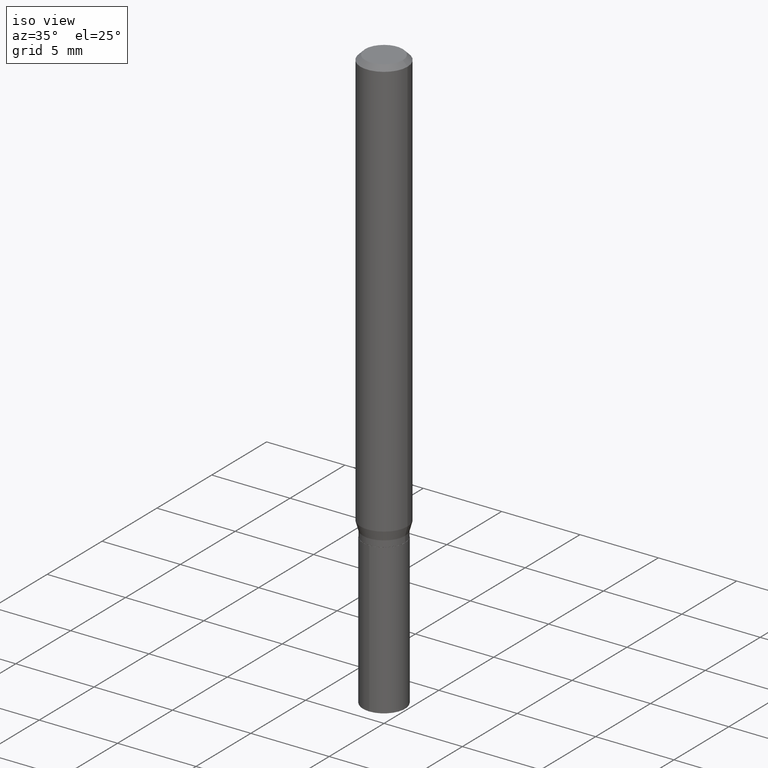
[diagram: clean part render]
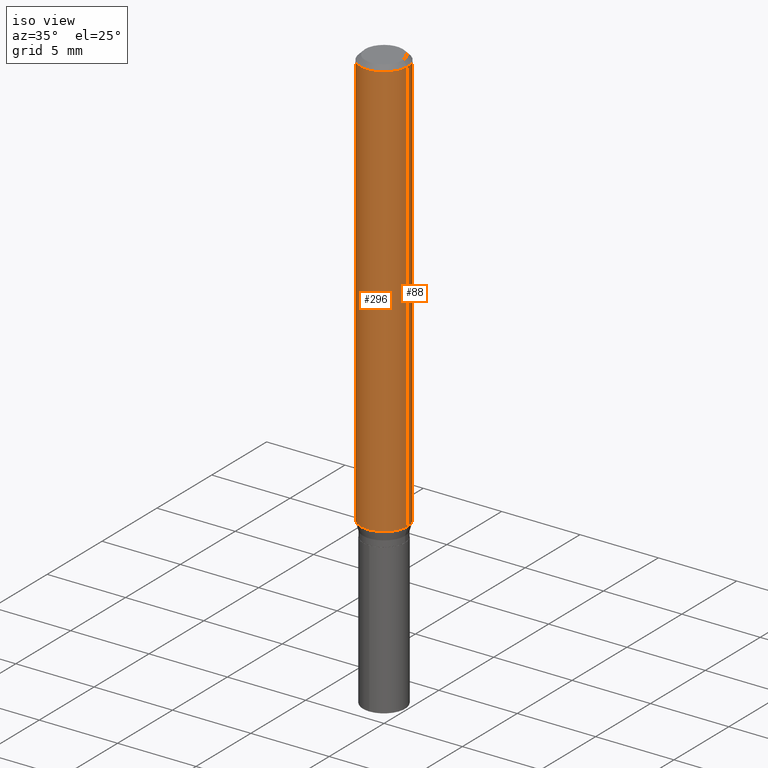
[diagram: same view with one multi-face feature highlighted, each face labeled with its STEP entity id]
A machine part, iso view. The highlighted faces form ONE feature: a constant-radius fillet chain: 2 tangent blend faces with common blend radius 1.4999 mm. The faces share edges in the B-rep.
Their STEP definitions:
[1] entity #296 (Cylinder):
#3 = VECTOR ( 'NONE', #352, 39.37007874015748143 ) ;
#17 = CARTESIAN_POINT ( 'NONE',  ( -0.05905000000000006771, 4.195754854663396409E-16, -2.904631170795525045E-30 ) ) ;
#26 = EDGE_LOOP ( 'NONE', ( #450, #460, #344, #359 ) ) ;
#34 = DIRECTION ( 'NONE',  ( -2.445468806185136597E-29, 3.491481338843145583E-15, 1.000000000000000000 ) ) ;
#50 = EDGE_CURVE ( 'NONE', #488, #483, #157, .T. ) ;
#72 = CARTESIAN_POINT ( 'NONE',  ( 0.05904999999999999832, -4.535783407291118600E-16, -0.01181000000000007218 ) ) ;
#76 = DIRECTION ( 'NONE',  ( -2.445468806185136877E-29, 3.491481338843145188E-15, 1.000000000000000000 ) ) ;
#100 = CARTESIAN_POINT ( 'NONE',  ( -0.05905000000000013016, -3.266850933533403500E-15, -1.055834490073829457 ) ) ;
#113 = CARTESIAN_POINT ( 'NONE',  ( 0.05905000000000013016, -4.098770365117118307E-15, -1.055834490073829457 ) ) ;
#133 = DIRECTION ( 'NONE',  ( -2.445468806185136597E-29, 3.491481338843145583E-15, 1.000000000000000000 ) ) ;
#138 = DIRECTION ( 'NONE',  ( 1.000000000000000000, -6.982962677686266711E-15, 4.876176775795936353E-29 ) ) ;
#156 = CARTESIAN_POINT ( 'NONE',  ( 2.888098660104664204E-31, -4.123439461173780263E-17, -0.01181000000000007218 ) ) ;
#157 = LINE ( 'NONE', #309, #198 ) ;
#159 = LINE ( 'NONE', #17, #3 ) ;
#171 = AXIS2_PLACEMENT_3D ( 'NONE', #449, #133, #138 ) ;
#180 = DIRECTION ( 'NONE',  ( 1.000000000000000000, -6.982962677686265133E-15, 0.000000000000000000 ) ) ;
#187 = EDGE_CURVE ( 'NONE', #328, #419, #159, .T. ) ;
#192 = DIRECTION ( 'NONE',  ( 1.000000000000000000, -6.982962677686266711E-15, 0.000000000000000000 ) ) ;
#198 = VECTOR ( 'NONE', #76, 39.37007874015748143 ) ;
#228 = CIRCLE ( 'NONE', #260, 0.05904999999999999832 ) ;
#248 = FACE_OUTER_BOUND ( 'NONE', #26, .T. ) ;
#260 = AXIS2_PLACEMENT_3D ( 'NONE', #156, #34, #192 ) ;
#290 = DIRECTION ( 'NONE',  ( -2.445468806185136597E-29, 3.491481338843145583E-15, 1.000000000000000000 ) ) ;
#296 = ADVANCED_FACE ( 'NONE', ( #248 ), #325, .T. ) ;
#309 = CARTESIAN_POINT ( 'NONE',  ( 0.05905000000000006771, -4.123439461173745257E-16, 2.879382386107503723E-30 ) ) ;
#325 = CYLINDRICAL_SURFACE ( 'NONE', #171, 0.05905000000000006771 ) ;
#328 = VERTEX_POINT ( 'NONE', #100 ) ;
#344 = ORIENTED_EDGE ( 'NONE', *, *, #50, .T. ) ;
#352 = DIRECTION ( 'NONE',  ( -2.445468806185136877E-29, 3.491481338843145188E-15, 1.000000000000000000 ) ) ;
#359 = ORIENTED_EDGE ( 'NONE', *, *, #484, .F. ) ;
#363 = CARTESIAN_POINT ( 'NONE',  ( 2.582010309969939758E-29, -3.686426418999744176E-15, -1.055834490073829457 ) ) ;
#419 = VERTEX_POINT ( 'NONE', #439 ) ;
#430 = CIRCLE ( 'NONE', #455, 0.05905000000000013016 ) ;
#439 = CARTESIAN_POINT ( 'NONE',  ( -0.05904999999999999832, -1.444254921339400473E-15, -0.01181000000000007218 ) ) ;
#444 = EDGE_CURVE ( 'NONE', #328, #488, #430, .T. ) ;
#449 = CARTESIAN_POINT ( 'NONE',  ( 0.000000000000000000, 0.000000000000000000, 0.000000000000000000 ) ) ;
#450 = ORIENTED_EDGE ( 'NONE', *, *, #187, .F. ) ;
#455 = AXIS2_PLACEMENT_3D ( 'NONE', #363, #290, #180 ) ;
#460 = ORIENTED_EDGE ( 'NONE', *, *, #444, .T. ) ;
#483 = VERTEX_POINT ( 'NONE', #72 ) ;
#484 = EDGE_CURVE ( 'NONE', #419, #483, #228, .T. ) ;
#488 = VERTEX_POINT ( 'NONE', #113 ) ;
[2] entity #88 (Cylinder):
#2 = FACE_OUTER_BOUND ( 'NONE', #179, .T. ) ;
#3 = VECTOR ( 'NONE', #352, 39.37007874015748143 ) ;
#13 = DIRECTION ( 'NONE',  ( -2.445468806185136597E-29, 3.491481338843145583E-15, 1.000000000000000000 ) ) ;
#17 = CARTESIAN_POINT ( 'NONE',  ( -0.05905000000000006771, 4.195754854663396409E-16, -2.904631170795525045E-30 ) ) ;
#35 = DIRECTION ( 'NONE',  ( 1.000000000000000000, -6.982962677686265133E-15, 0.000000000000000000 ) ) ;
#50 = EDGE_CURVE ( 'NONE', #488, #483, #157, .T. ) ;
#72 = CARTESIAN_POINT ( 'NONE',  ( 0.05904999999999999832, -4.535783407291118600E-16, -0.01181000000000007218 ) ) ;
#73 = CYLINDRICAL_SURFACE ( 'NONE', #414, 0.05905000000000006771 ) ;
#76 = DIRECTION ( 'NONE',  ( -2.445468806185136877E-29, 3.491481338843145188E-15, 1.000000000000000000 ) ) ;
#88 = ADVANCED_FACE ( 'NONE', ( #2 ), #73, .T. ) ;
#97 = EDGE_CURVE ( 'NONE', #488, #328, #478, .T. ) ;
#100 = CARTESIAN_POINT ( 'NONE',  ( -0.05905000000000013016, -3.266850933533403500E-15, -1.055834490073829457 ) ) ;
#107 = CARTESIAN_POINT ( 'NONE',  ( 0.000000000000000000, 0.000000000000000000, 0.000000000000000000 ) ) ;
#113 = CARTESIAN_POINT ( 'NONE',  ( 0.05905000000000013016, -4.098770365117118307E-15, -1.055834490073829457 ) ) ;
#118 = ORIENTED_EDGE ( 'NONE', *, *, #50, .F. ) ;
#157 = LINE ( 'NONE', #309, #198 ) ;
#159 = LINE ( 'NONE', #17, #3 ) ;
#179 = EDGE_LOOP ( 'NONE', ( #490, #452, #364, #118 ) ) ;
#187 = EDGE_CURVE ( 'NONE', #328, #419, #159, .T. ) ;
#190 = CARTESIAN_POINT ( 'NONE',  ( 2.582010309969939758E-29, -3.686426418999744176E-15, -1.055834490073829457 ) ) ;
#198 = VECTOR ( 'NONE', #76, 39.37007874015748143 ) ;
#201 = DIRECTION ( 'NONE',  ( 1.000000000000000000, -6.982962677686266711E-15, 0.000000000000000000 ) ) ;
#226 = EDGE_CURVE ( 'NONE', #483, #419, #395, .T. ) ;
#292 = AXIS2_PLACEMENT_3D ( 'NONE', #190, #374, #35 ) ;
#299 = DIRECTION ( 'NONE',  ( 1.000000000000000000, -6.982962677686266711E-15, 4.876176775795936353E-29 ) ) ;
#309 = CARTESIAN_POINT ( 'NONE',  ( 0.05905000000000006771, -4.123439461173745257E-16, 2.879382386107503723E-30 ) ) ;
#328 = VERTEX_POINT ( 'NONE', #100 ) ;
#336 = DIRECTION ( 'NONE',  ( -2.445468806185136597E-29, 3.491481338843145583E-15, 1.000000000000000000 ) ) ;
#352 = DIRECTION ( 'NONE',  ( -2.445468806185136877E-29, 3.491481338843145188E-15, 1.000000000000000000 ) ) ;
#364 = ORIENTED_EDGE ( 'NONE', *, *, #226, .F. ) ;
#369 = AXIS2_PLACEMENT_3D ( 'NONE', #474, #13, #201 ) ;
#374 = DIRECTION ( 'NONE',  ( -2.445468806185136597E-29, 3.491481338843145583E-15, 1.000000000000000000 ) ) ;
#395 = CIRCLE ( 'NONE', #369, 0.05904999999999999832 ) ;
#414 = AXIS2_PLACEMENT_3D ( 'NONE', #107, #336, #299 ) ;
#419 = VERTEX_POINT ( 'NONE', #439 ) ;
#439 = CARTESIAN_POINT ( 'NONE',  ( -0.05904999999999999832, -1.444254921339400473E-15, -0.01181000000000007218 ) ) ;
#452 = ORIENTED_EDGE ( 'NONE', *, *, #187, .T. ) ;
#474 = CARTESIAN_POINT ( 'NONE',  ( 2.888098660104664204E-31, -4.123439461173780263E-17, -0.01181000000000007218 ) ) ;
#478 = CIRCLE ( 'NONE', #292, 0.05905000000000013016 ) ;
#483 = VERTEX_POINT ( 'NONE', #72 ) ;
#488 = VERTEX_POINT ( 'NONE', #113 ) ;
#490 = ORIENTED_EDGE ( 'NONE', *, *, #97, .T. ) ;